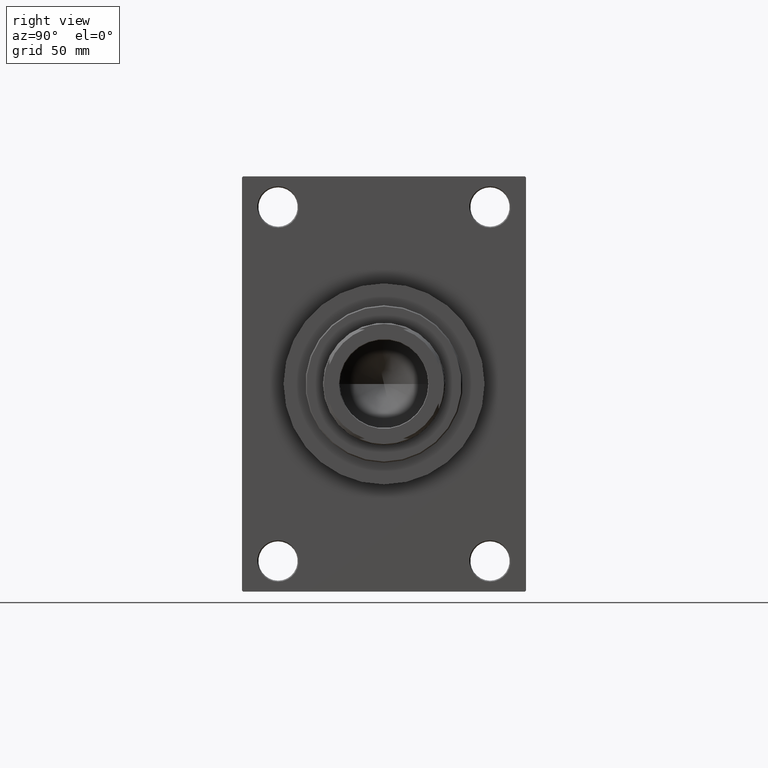
[diagram: clean part render]
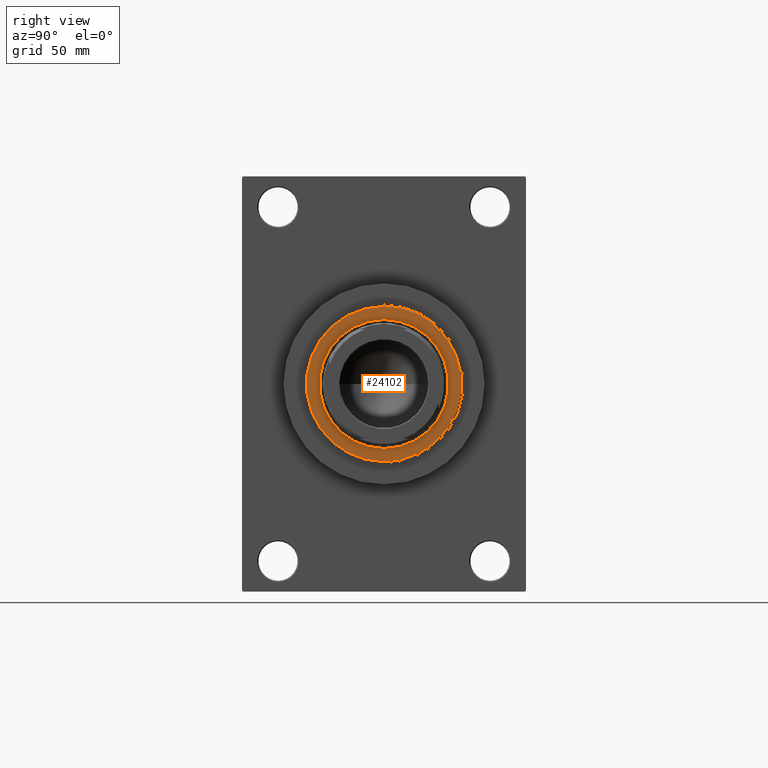
[diagram: same view with one face highlighted and labeled with its STEP entity id]
A machine part, right view. The second image highlights one B-rep face of the part: STEP entity #24102.
In plain terms, the highlighted planar face has unit normal (1, -0, -0).
Its self-contained STEP definition (entity closure, byte-faithful):
#1499 = VERTEX_POINT ( 'NONE', #46239 ) ;
#2291 = CARTESIAN_POINT ( 'NONE',  ( 0.000000000000000000, 0.000000000000000000, 53.26000000000000512 ) ) ;
#2523 = CARTESIAN_POINT ( 'NONE',  ( 0.000000000000000000, 0.000000000000000000, 53.26000000000000512 ) ) ;
#4738 = ORIENTED_EDGE ( 'NONE', *, *, #34666, .T. ) ;
#5455 = AXIS2_PLACEMENT_3D ( 'NONE', #36883, #39559, #21897 ) ;
#5469 = CARTESIAN_POINT ( 'NONE',  ( 0.000000000000000000, 0.000000000000000000, 53.26000000000000512 ) ) ;
#8194 = AXIS2_PLACEMENT_3D ( 'NONE', #28621, #17989, #14145 ) ;
#9061 = DIRECTION ( 'NONE',  ( 0.000000000000000000, 0.000000000000000000, 1.000000000000000000 ) ) ;
#9086 = DIRECTION ( 'NONE',  ( 1.000000000000000000, 0.000000000000000000, 0.000000000000000000 ) ) ;
#10056 = ORIENTED_EDGE ( 'NONE', *, *, #25290, .F. ) ;
#11324 = AXIS2_PLACEMENT_3D ( 'NONE', #2291, #9061, #16990 ) ;
#13909 = FACE_OUTER_BOUND ( 'NONE', #37027, .T. ) ;
#13921 = CIRCLE ( 'NONE', #5455, 35.50000000000001421 ) ;
#14145 = DIRECTION ( 'NONE',  ( 1.000000000000000000, 0.000000000000000000, -0.000000000000000000 ) ) ;
#14599 = AXIS2_PLACEMENT_3D ( 'NONE', #5469, #22850, #9086 ) ;
#15605 = CARTESIAN_POINT ( 'NONE',  ( 35.50000000000001421, 4.378112306951788646E-15, 53.26000000000000512 ) ) ;
#16580 = CIRCLE ( 'NONE', #42025, 35.50000000000001421 ) ;
#16990 = DIRECTION ( 'NONE',  ( 1.000000000000000000, 0.000000000000000000, 0.000000000000000000 ) ) ;
#17989 = DIRECTION ( 'NONE',  ( 0.000000000000000000, 0.000000000000000000, 1.000000000000000000 ) ) ;
#18217 = CARTESIAN_POINT ( 'NONE',  ( -35.50000000000001421, 0.000000000000000000, 53.26000000000000512 ) ) ;
#20057 = VERTEX_POINT ( 'NONE', #15605 ) ;
#21897 = DIRECTION ( 'NONE',  ( 1.000000000000000000, 0.000000000000000000, 0.000000000000000000 ) ) ;
#22850 = DIRECTION ( 'NONE',  ( 0.000000000000000000, 0.000000000000000000, 1.000000000000000000 ) ) ;
#24102 = ADVANCED_FACE ( 'NONE', ( #25231, #13909 ), #28853, .T. ) ;
#25231 = FACE_BOUND ( 'NONE', #47643, .T. ) ;
#25290 = EDGE_CURVE ( 'NONE', #1499, #37415, #32101, .T. ) ;
#25419 = DIRECTION ( 'NONE',  ( 0.000000000000000000, 0.000000000000000000, 1.000000000000000000 ) ) ;
#28621 = CARTESIAN_POINT ( 'NONE',  ( 0.000000000000000000, 0.000000000000000000, 53.26000000000000512 ) ) ;
#28853 = PLANE ( 'NONE',  #8194 ) ;
#31296 = ORIENTED_EDGE ( 'NONE', *, *, #32824, .F. ) ;
#32101 = CIRCLE ( 'NONE', #11324, 29.50000000000000355 ) ;
#32681 = CARTESIAN_POINT ( 'NONE',  ( -29.50000000000000355, 3.612708057484692393E-15, 53.26000000000000512 ) ) ;
#32824 = EDGE_CURVE ( 'NONE', #37415, #1499, #36975, .T. ) ;
#34666 = EDGE_CURVE ( 'NONE', #41323, #20057, #13921, .T. ) ;
#36883 = CARTESIAN_POINT ( 'NONE',  ( 0.000000000000000000, 0.000000000000000000, 53.26000000000000512 ) ) ;
#36975 = CIRCLE ( 'NONE', #14599, 29.50000000000000355 ) ;
#37027 = EDGE_LOOP ( 'NONE', ( #4738, #43596 ) ) ;
#37415 = VERTEX_POINT ( 'NONE', #32681 ) ;
#39559 = DIRECTION ( 'NONE',  ( 0.000000000000000000, 0.000000000000000000, 1.000000000000000000 ) ) ;
#41323 = VERTEX_POINT ( 'NONE', #18217 ) ;
#42025 = AXIS2_PLACEMENT_3D ( 'NONE', #2523, #25419, #46933 ) ;
#43596 = ORIENTED_EDGE ( 'NONE', *, *, #47450, .T. ) ;
#46239 = CARTESIAN_POINT ( 'NONE',  ( 29.50000000000000355, 0.000000000000000000, 53.26000000000000512 ) ) ;
#46933 = DIRECTION ( 'NONE',  ( 1.000000000000000000, 0.000000000000000000, 0.000000000000000000 ) ) ;
#47450 = EDGE_CURVE ( 'NONE', #20057, #41323, #16580, .T. ) ;
#47643 = EDGE_LOOP ( 'NONE', ( #10056, #31296 ) ) ;